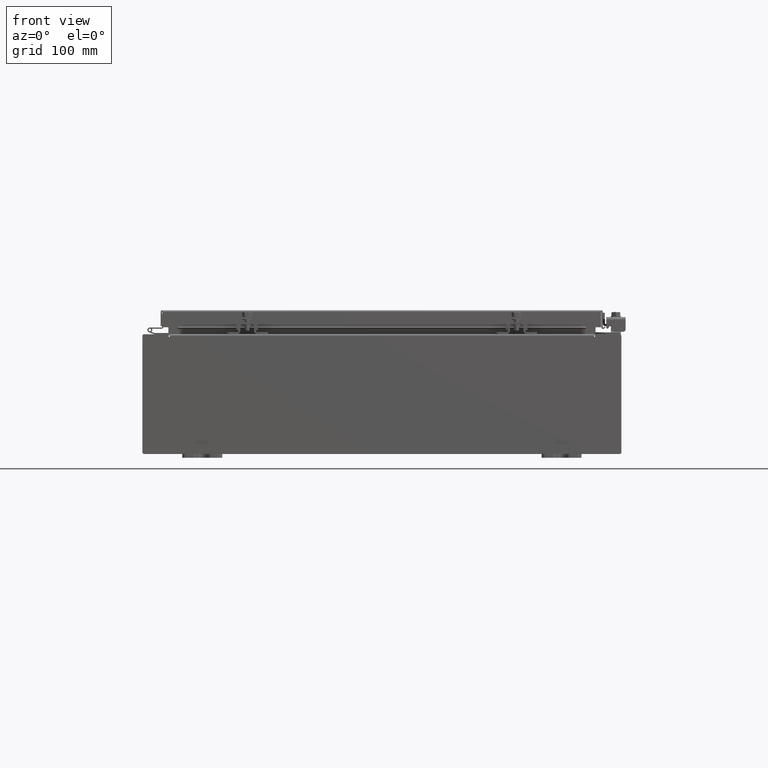
[diagram: clean part render]
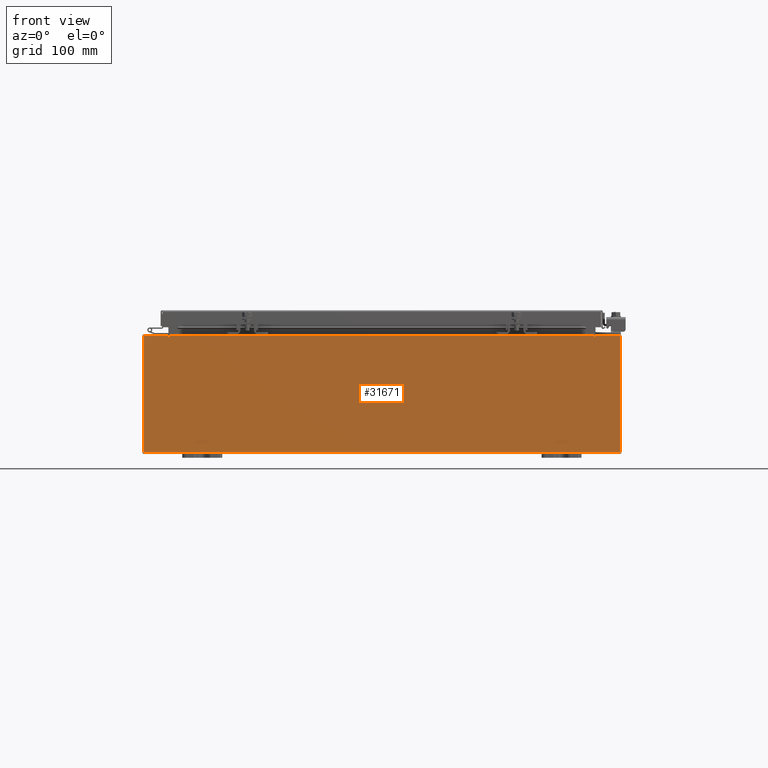
[diagram: same view with one face highlighted and labeled with its STEP entity id]
A machine part, front view. The second image highlights one B-rep face of the part: STEP entity #31671.
In plain terms, the highlighted planar face has unit normal (-0, 1, -0).
Its self-contained STEP definition (entity closure, byte-faithful):
#116 = ORIENTED_EDGE ( 'NONE', *, *, #10155, .T. ) ;
#198 = ORIENTED_EDGE ( 'NONE', *, *, #3368, .F. ) ;
#687 = VECTOR ( 'NONE', #12464, 39.37007874015748100 ) ;
#937 = EDGE_CURVE ( 'NONE', #6272, #18099, #10352, .T. ) ;
#1053 = DIRECTION ( 'NONE',  ( 1.000000000000000000, 0.0000000000000000000, 0.0000000000000000000 ) ) ;
#1187 = EDGE_CURVE ( 'NONE', #7344, #19944, #16555, .T. ) ;
#2102 = CARTESIAN_POINT ( 'NONE',  ( 0.0000000000000000000, 0.0000000000000000000, 0.0000000000000000000 ) ) ;
#2163 = VERTEX_POINT ( 'NONE', #19239 ) ;
#2972 = LINE ( 'NONE', #10075, #15514 ) ;
#3152 = EDGE_CURVE ( 'NONE', #7344, #18220, #17916, .T. ) ;
#3154 = VECTOR ( 'NONE', #18709, 39.37007874015748100 ) ;
#3368 = EDGE_CURVE ( 'NONE', #18220, #6272, #31599, .T. ) ;
#4116 = VECTOR ( 'NONE', #1053, 39.37007874015748100 ) ;
#4658 = AXIS2_PLACEMENT_3D ( 'NONE', #8870, #26367, #11385 ) ;
#4679 = CARTESIAN_POINT ( 'NONE',  ( -10.63720000000000400, -0.0000000000000000000, 2.874950000000000600 ) ) ;
#5218 = VERTEX_POINT ( 'NONE', #24499 ) ;
#5510 = DIRECTION ( 'NONE',  ( -1.000000000000000000, -0.0000000000000000000, -0.0000000000000000000 ) ) ;
#5838 = ORIENTED_EDGE ( 'NONE', *, *, #32012, .F. ) ;
#6086 = DIRECTION ( 'NONE',  ( 0.0000000000000000000, 0.0000000000000000000, 1.000000000000000000 ) ) ;
#6256 = CARTESIAN_POINT ( 'NONE',  ( 10.65587500000000200, 0.0000000000000000000, 2.874950000000000600 ) ) ;
#6272 = VERTEX_POINT ( 'NONE', #28712 ) ;
#6363 = ORIENTED_EDGE ( 'NONE', *, *, #23754, .T. ) ;
#6792 = EDGE_LOOP ( 'NONE', ( #27934, #198, #10964, #20711, #5838, #8957, #25483, #116, #20949, #11586, #30852, #6363 ) ) ;
#7122 = DIRECTION ( 'NONE',  ( 0.0000000000000000000, -0.0000000000000000000, -1.000000000000000000 ) ) ;
#7342 = LINE ( 'NONE', #9952, #687 ) ;
#7344 = VERTEX_POINT ( 'NONE', #28106 ) ;
#7363 = CARTESIAN_POINT ( 'NONE',  ( -11.92530000000000000, 0.0000000000000000000, 2.925300000000000500 ) ) ;
#7390 = VERTEX_POINT ( 'NONE', #26217 ) ;
#8138 = DIRECTION ( 'NONE',  ( 0.0000000000000000000, 0.0000000000000000000, -1.000000000000000000 ) ) ;
#8790 = DIRECTION ( 'NONE',  ( 0.0000000000000000000, 0.0000000000000000000, -1.000000000000000000 ) ) ;
#8825 = LINE ( 'NONE', #15862, #14693 ) ;
#8870 = CARTESIAN_POINT ( 'NONE',  ( -10.65587500000000200, 0.0000000000000000000, 2.874950000000000600 ) ) ;
#8957 = ORIENTED_EDGE ( 'NONE', *, *, #15168, .F. ) ;
#9228 = LINE ( 'NONE', #31062, #4116 ) ;
#9952 = CARTESIAN_POINT ( 'NONE',  ( 11.92530000000000000, 0.0000000000000000000, 2.925300000000000500 ) ) ;
#10075 = CARTESIAN_POINT ( 'NONE',  ( 10.67454999999987700, -0.0000000000000000000, -4.633366117301834200E-013 ) ) ;
#10155 = EDGE_CURVE ( 'NONE', #23304, #23921, #25666, .T. ) ;
#10352 = LINE ( 'NONE', #18590, #23632 ) ;
#10832 = FACE_OUTER_BOUND ( 'NONE', #6792, .T. ) ;
#10964 = ORIENTED_EDGE ( 'NONE', *, *, #3152, .F. ) ;
#11385 = DIRECTION ( 'NONE',  ( 0.0000000000000000000, 0.0000000000000000000, -1.000000000000000000 ) ) ;
#11586 = ORIENTED_EDGE ( 'NONE', *, *, #28087, .T. ) ;
#12464 = DIRECTION ( 'NONE',  ( 0.0000000000000000000, 0.0000000000000000000, -1.000000000000000000 ) ) ;
#12857 = AXIS2_PLACEMENT_3D ( 'NONE', #2102, #22139, #7122 ) ;
#12942 = AXIS2_PLACEMENT_3D ( 'NONE', #6256, #23781, #8790 ) ;
#14693 = VECTOR ( 'NONE', #20938, 39.37007874015748100 ) ;
#14931 = CARTESIAN_POINT ( 'NONE',  ( -11.92530000000000000, 0.0000000000000000000, -2.925299999999999600 ) ) ;
#15088 = DIRECTION ( 'NONE',  ( -4.340572780400004900E-014, 0.0000000000000000000, -1.000000000000000000 ) ) ;
#15168 = EDGE_CURVE ( 'NONE', #28764, #2163, #29334, .T. ) ;
#15514 = VECTOR ( 'NONE', #15088, 39.37007874015748100 ) ;
#15691 = LINE ( 'NONE', #16153, #3154 ) ;
#15780 = VECTOR ( 'NONE', #22077, 39.37007874015748100 ) ;
#15862 = CARTESIAN_POINT ( 'NONE',  ( 10.63720000000000400, 0.0000000000000000000, 0.0000000000000000000 ) ) ;
#16153 = CARTESIAN_POINT ( 'NONE',  ( -11.92530000000000000, 0.0000000000000000000, 2.925300000000000500 ) ) ;
#16555 = LINE ( 'NONE', #24581, #15780 ) ;
#17087 = PLANE ( 'NONE',  #12857 ) ;
#17916 = LINE ( 'NONE', #23117, #30453 ) ;
#18099 = VERTEX_POINT ( 'NONE', #21779 ) ;
#18220 = VERTEX_POINT ( 'NONE', #4679 ) ;
#18590 = CARTESIAN_POINT ( 'NONE',  ( -10.67455000000000200, -0.0000000000000000000, 0.0000000000000000000 ) ) ;
#18709 = DIRECTION ( 'NONE',  ( -0.0000000000000000000, -0.0000000000000000000, 1.000000000000000000 ) ) ;
#19239 = CARTESIAN_POINT ( 'NONE',  ( 10.63720000000000400, 0.0000000000000000000, 2.874950000000000600 ) ) ;
#19546 = VECTOR ( 'NONE', #5510, 39.37007874015748100 ) ;
#19944 = VERTEX_POINT ( 'NONE', #22982 ) ;
#20112 = EDGE_CURVE ( 'NONE', #24108, #5218, #15691, .T. ) ;
#20596 = VECTOR ( 'NONE', #27390, 39.37007874015748100 ) ;
#20711 = ORIENTED_EDGE ( 'NONE', *, *, #1187, .T. ) ;
#20938 = DIRECTION ( 'NONE',  ( 0.0000000000000000000, 0.0000000000000000000, 1.000000000000000000 ) ) ;
#20949 = ORIENTED_EDGE ( 'NONE', *, *, #30605, .T. ) ;
#21779 = CARTESIAN_POINT ( 'NONE',  ( -10.67455000000000200, 0.0000000000000000000, 2.925300000000000500 ) ) ;
#22077 = DIRECTION ( 'NONE',  ( 1.000000000000000000, 0.0000000000000000000, 0.0000000000000000000 ) ) ;
#22139 = DIRECTION ( 'NONE',  ( 0.0000000000000000000, -1.000000000000000000, 0.0000000000000000000 ) ) ;
#22982 = CARTESIAN_POINT ( 'NONE',  ( 10.63720000000000400, 0.0000000000000000000, 2.912300000000000600 ) ) ;
#23117 = CARTESIAN_POINT ( 'NONE',  ( -10.63720000000000400, -0.0000000000000000000, 0.0000000000000000000 ) ) ;
#23304 = VERTEX_POINT ( 'NONE', #31739 ) ;
#23315 = CARTESIAN_POINT ( 'NONE',  ( 10.67455000000000200, 0.0000000000000000000, 2.874950000000000600 ) ) ;
#23521 = EDGE_CURVE ( 'NONE', #23304, #28764, #2972, .T. ) ;
#23632 = VECTOR ( 'NONE', #6086, 39.37007874015748100 ) ;
#23754 = EDGE_CURVE ( 'NONE', #5218, #18099, #9228, .T. ) ;
#23781 = DIRECTION ( 'NONE',  ( -0.0000000000000000000, 1.000000000000000000, -0.0000000000000000000 ) ) ;
#23921 = VERTEX_POINT ( 'NONE', #26645 ) ;
#24108 = VERTEX_POINT ( 'NONE', #14931 ) ;
#24499 = CARTESIAN_POINT ( 'NONE',  ( -11.92530000000000000, 0.0000000000000000000, 2.925300000000000500 ) ) ;
#24581 = CARTESIAN_POINT ( 'NONE',  ( -10.63720000000000400, 1.024442997624098700E-016, 2.912300000000000600 ) ) ;
#25483 = ORIENTED_EDGE ( 'NONE', *, *, #23521, .F. ) ;
#25666 = LINE ( 'NONE', #7363, #20596 ) ;
#26217 = CARTESIAN_POINT ( 'NONE',  ( 11.92530000000000000, 0.0000000000000000000, -2.925299999999999600 ) ) ;
#26367 = DIRECTION ( 'NONE',  ( -0.0000000000000000000, 1.000000000000000000, -0.0000000000000000000 ) ) ;
#26645 = CARTESIAN_POINT ( 'NONE',  ( 11.92530000000000000, 0.0000000000000000000, 2.925300000000000500 ) ) ;
#27390 = DIRECTION ( 'NONE',  ( 1.000000000000000000, 0.0000000000000000000, 0.0000000000000000000 ) ) ;
#27934 = ORIENTED_EDGE ( 'NONE', *, *, #937, .F. ) ;
#28087 = EDGE_CURVE ( 'NONE', #7390, #24108, #32076, .T. ) ;
#28106 = CARTESIAN_POINT ( 'NONE',  ( -10.63720000000000400, 1.024442997624098700E-016, 2.912300000000000600 ) ) ;
#28712 = CARTESIAN_POINT ( 'NONE',  ( -10.67455000000000200, 0.0000000000000000000, 2.874950000000000600 ) ) ;
#28764 = VERTEX_POINT ( 'NONE', #23315 ) ;
#29334 = CIRCLE ( 'NONE', #12942, 0.01867499999999949400 ) ;
#30453 = VECTOR ( 'NONE', #8138, 39.37007874015748100 ) ;
#30587 = CARTESIAN_POINT ( 'NONE',  ( -11.92530000000000000, 0.0000000000000000000, -2.925299999999999600 ) ) ;
#30605 = EDGE_CURVE ( 'NONE', #23921, #7390, #7342, .T. ) ;
#30852 = ORIENTED_EDGE ( 'NONE', *, *, #20112, .T. ) ;
#31062 = CARTESIAN_POINT ( 'NONE',  ( -11.92530000000000000, 0.0000000000000000000, 2.925300000000000500 ) ) ;
#31599 = CIRCLE ( 'NONE', #4658, 0.01867499999999949400 ) ;
#31671 = ADVANCED_FACE ( 'NONE', ( #10832 ), #17087, .F. ) ;
#31739 = CARTESIAN_POINT ( 'NONE',  ( 10.67455000000000200, 0.0000000000000000000, 2.925300000000000500 ) ) ;
#32012 = EDGE_CURVE ( 'NONE', #2163, #19944, #8825, .T. ) ;
#32076 = LINE ( 'NONE', #30587, #19546 ) ;